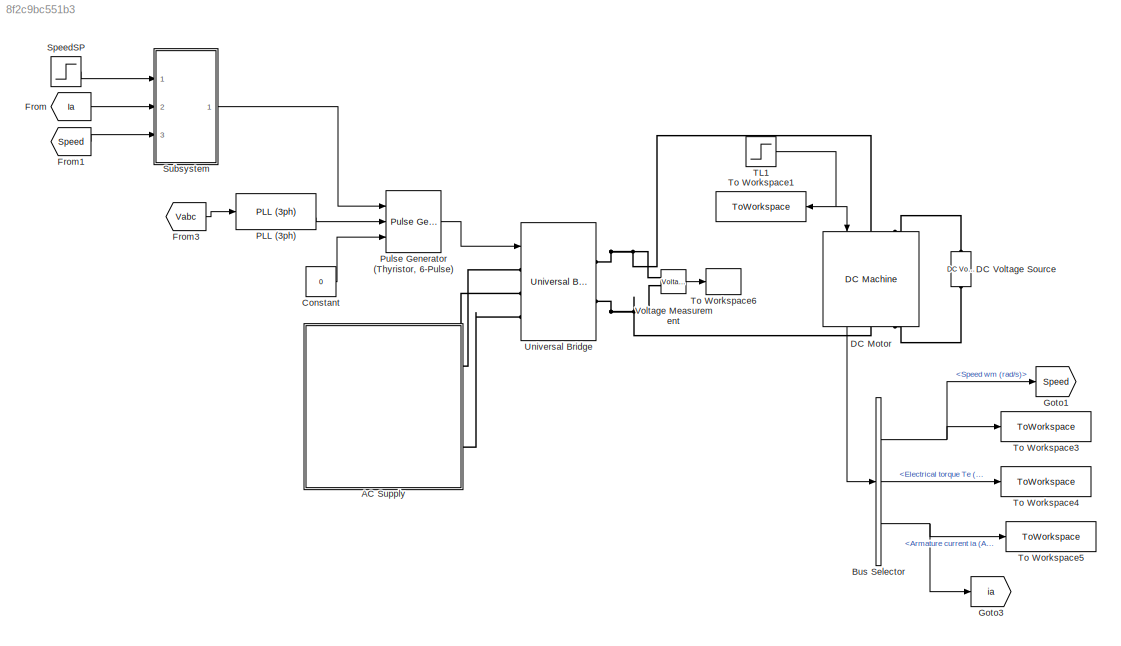
MODEL slx_8f2c9bc551b3
KIND model
CONFIG AbsTol = auto
CONFIG EnableMultiTasking = off
CONFIG FixedStep = auto
CONFIG InitFcn = UaN = 400; IaN = 62; PN = 22e3; \nLa = 5.2e-3; Ra = 0.32; \nTN = 67.8; nN = 3100; J = 0.05; \nUfN = 310; IfN = 1.8; \neta = 0.873; \n% Tinh toan tham so chua biet \nKE = (UaN - Ra*IaN)*9.55/nN ;\nKT = KE ;\nLaf = KE/IfN ;\nRf = UfN/IfN ;\nLf = Laf ;\nfL=200;\n\nzeta=1/sqrt(2); \nTfv=0.001; \nTsp=0.05; \n%--------------------------------------------- \nTd=1/(fL) ;\nTfi=1/(5*fL) ;\nTe=Td+Tfi ;\nTa=La/Ra ;\nwn=1/(2*Te*ze...<+166ch>
CONFIG MaxStep = auto
CONFIG MinStep = auto
CONFIG RelTol = 1e-3
CONFIG SampleTimeConstraint = Unconstrained
CONFIG Solver = VariableStepAuto
CONFIG SolverName = VariableStepAuto
CONFIG StartTime = 0.0
CONFIG StopTime = 3.0
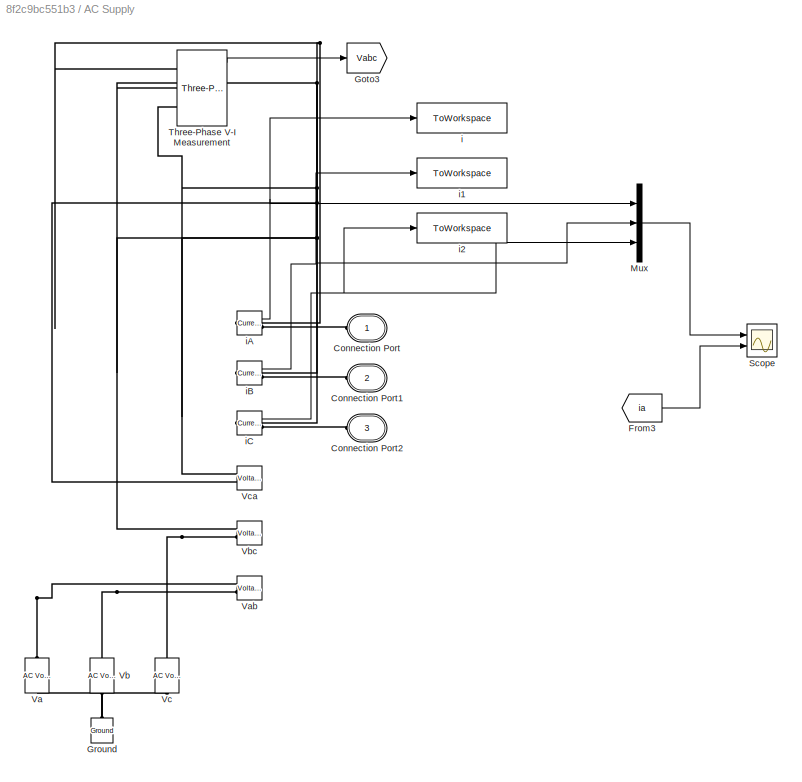
BLOCK [SubSystem] AC Supply
  Ports = [0, 0, 0, 0, 0, 3]
  RequestExecContextInheritance = off
  ShowPortLabels = FromPortBlockName
BLOCK [PMIOPort] AC Supply/Connection Port
  Side = Left
  Tag = PMCPort
BLOCK [PMIOPort] AC Supply/Connection Port1
  Port = 2
  Side = Left
  Tag = PMCPort
BLOCK [PMIOPort] AC Supply/Connection Port2
  Port = 3
  Side = Left
  Tag = PMCPort
BLOCK [From] AC Supply/From3
  GotoTag = ia
  TagVisibility = global
BLOCK [Goto] AC Supply/Goto3
  GotoTag = Vabc
  TagVisibility = global
BLOCK [Reference] AC Supply/Ground  REF=powerlib/Elements/Ground
  Ports = [0, 0, 0, 0, 0, 1]
  SourceBlock = powerlib/Elements/Ground
  SourceProductBaseCode = PS
  SourceType = Ground
BLOCK [Mux] AC Supply/Mux
  DisplayOption = bar
  Inputs = 3
  Ports = [3, 1]
BLOCK [Scope] AC Supply/Scope
  Floating = off
  NumInputPorts = 2
  Ports = [2]
  ScopeSpecificationString = Simulink.scopes.TimeScopeBlockCfg('CurrentConfiguration', extmgr.ConfigurationSet(extmgr.Configuration('Core','General UI',true),extmgr.Configuration('Core','Source UI',true),extmgr.Configuration('Sources','WiredSimulink',true),extmgr.Configuration('Visuals','Time Domain',true,'SerializedDisplays',{struct('MinYLimReal','-0.01855','MaxYLimReal','0.01855','YLabelReal','','MinYLimMag','0.00000','MaxY...<+1431ch>
BLOCK [Reference] AC Supply/Three-Phase V-I Measurement  REF=powerlib/Measurements/Three-Phase
V-I Measurement
  Ports = [0, 2, 0, 0, 0, 3, 3]
  SourceBlock = powerlib/Measurements/Three-Phase\nV-I Measurement
  SourceProductBaseCode = PS
  SourceType = Three-Phase VI Measurement
BLOCK [Reference] AC Supply/Va  REF=powerlib/Electrical
Sources/AC Voltage Source
  Ports = [0, 0, 0, 0, 0, 1, 1]
  SourceBlock = powerlib/Electrical\nSources/AC Voltage Source
  SourceProductBaseCode = PS
  SourceType = AC Voltage Source
BLOCK [Reference] AC Supply/Vab  REF=powerlib/Measurements/Voltage Measurement
  Ports = [0, 1, 0, 0, 0, 2]
  SourceBlock = powerlib/Measurements/Voltage Measurement
  SourceProductBaseCode = PS
  SourceType = Voltage Measurement
  UserDataPersistent = on
BLOCK [Reference] AC Supply/Vb  REF=powerlib/Electrical
Sources/AC Voltage Source
  Ports = [0, 0, 0, 0, 0, 1, 1]
  SourceBlock = powerlib/Electrical\nSources/AC Voltage Source
  SourceProductBaseCode = PS
  SourceType = AC Voltage Source
BLOCK [Reference] AC Supply/Vbc  REF=powerlib/Measurements/Voltage Measurement
  Ports = [0, 1, 0, 0, 0, 2]
  SourceBlock = powerlib/Measurements/Voltage Measurement
  SourceProductBaseCode = PS
  SourceType = Voltage Measurement
  UserDataPersistent = on
BLOCK [Reference] AC Supply/Vc  REF=powerlib/Electrical
Sources/AC Voltage Source
  Ports = [0, 0, 0, 0, 0, 1, 1]
  SourceBlock = powerlib/Electrical\nSources/AC Voltage Source
  SourceProductBaseCode = PS
  SourceType = AC Voltage Source
BLOCK [Reference] AC Supply/Vca  REF=powerlib/Measurements/Voltage Measurement
  Ports = [0, 1, 0, 0, 0, 2]
  SourceBlock = powerlib/Measurements/Voltage Measurement
  SourceProductBaseCode = PS
  SourceType = Voltage Measurement
  UserDataPersistent = on
BLOCK [ToWorkspace] AC Supply/i
  FixptAsFi = on
  MaxDataPoints = inf
  Ports = [1]
  SampleTime = -1
  Save2DSignal = 3-D array (concatenate along third dimension)
  SaveFormat = Structure With Time
  VariableName = iA
BLOCK [ToWorkspace] AC Supply/i1
  FixptAsFi = on
  MaxDataPoints = inf
  Ports = [1]
  SampleTime = -1
  Save2DSignal = 3-D array (concatenate along third dimension)
  SaveFormat = Structure With Time
  VariableName = iB
BLOCK [ToWorkspace] AC Supply/i2
  FixptAsFi = on
  MaxDataPoints = inf
  Ports = [1]
  SampleTime = -1
  Save2DSignal = 3-D array (concatenate along third dimension)
  SaveFormat = Structure With Time
  VariableName = iC
BLOCK [Reference] AC Supply/iA  REF=powerlib/Measurements/Current Measurement
  Ports = [0, 1, 0, 0, 0, 1, 1]
  SourceBlock = powerlib/Measurements/Current Measurement
  SourceProductBaseCode = PS
  SourceType = Current Measurement
  UserDataPersistent = on
BLOCK [Reference] AC Supply/iB  REF=powerlib/Measurements/Current Measurement
  Ports = [0, 1, 0, 0, 0, 1, 1]
  SourceBlock = powerlib/Measurements/Current Measurement
  SourceProductBaseCode = PS
  SourceType = Current Measurement
  UserDataPersistent = on
BLOCK [Reference] AC Supply/iC  REF=powerlib/Measurements/Current Measurement
  Ports = [0, 1, 0, 0, 0, 1, 1]
  SourceBlock = powerlib/Measurements/Current Measurement
  SourceProductBaseCode = PS
  SourceType = Current Measurement
  UserDataPersistent = on
BLOCK [BusSelector] Bus Selector
  OutputAsBus = off
  OutputSignals = Speed wm (rad/s),Electrical torque Te (n m),Armature current ia (A)
  Ports = [1, 3]
BLOCK [Constant] Constant
  Value = 0
BLOCK [Reference] DC Motor  REF=powerlib/Machines/DC Machine
  Ports = [1, 1, 0, 0, 0, 2, 2]
  SourceBlock = powerlib/Machines/DC Machine
  SourceProductBaseCode = PS
  SourceType = DC machine
BLOCK [Reference] DC Voltage Source  REF=powerlib/Electrical
Sources/DC Voltage Source
  Ports = [0, 0, 0, 0, 0, 1, 1]
  SourceBlock = powerlib/Electrical\nSources/DC Voltage Source
  SourceProductBaseCode = PS
  SourceType = DC Voltage Source
BLOCK [From] From
  GotoTag = Ia
BLOCK [From] From1
  GotoTag = Speed
  TagVisibility = global
BLOCK [From] From3
  GotoTag = Vabc
  TagVisibility = global
BLOCK [Goto] Goto1
  GotoTag = Speed
  TagVisibility = global
BLOCK [Goto] Goto3
  GotoTag = ia
  TagVisibility = global
BLOCK [Reference] PLL (3ph)  REF=powerlib_meascontrol/PLL/PLL
(3ph)
  Ports = [1, 2]
  SourceBlock = powerlib_meascontrol/PLL/PLL\n(3ph)
  SourceProductBaseCode = PS
  SourceType = PLL (3ph)
BLOCK [Reference] Pulse Generator (Thyristor, 6-Pulse)  REF=powerlib_meascontrol/Pulse & Signal
Generators/Pulse Generator
(Thyristor, 12-Pulse)
  Ports = [3, 1]
  SourceBlock = powerlib_meascontrol/Pulse & Signal\nGenerators/Pulse Generator\n(Thyristor, 12-Pulse)
  SourceProductBaseCode = PS
  SourceType = Pulse Generator (Thyristor)
BLOCK [Step] SpeedSP
  SampleTime = 0
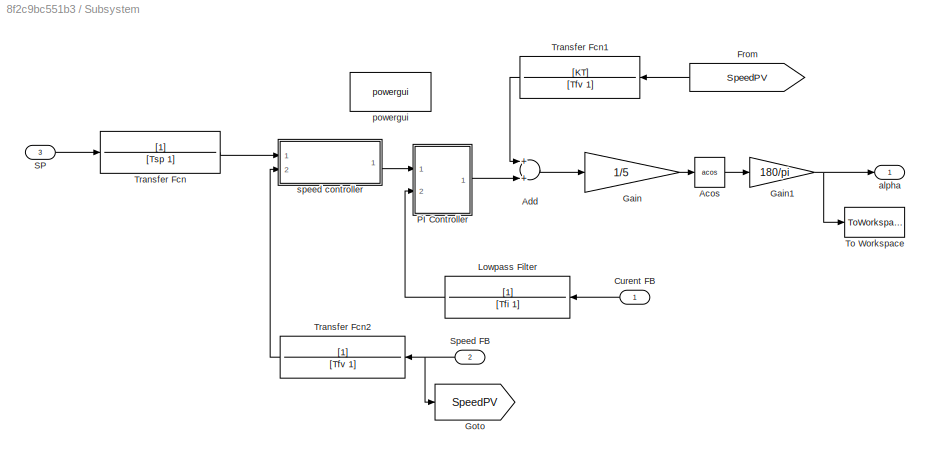
BLOCK [SubSystem] Subsystem
  Ports = [3, 1]
  RequestExecContextInheritance = off
BLOCK [Trigonometry] Subsystem/Acos
  Operator = acos
  Ports = [1, 1]
BLOCK [Sum] Subsystem/Add
  InputSameDT = off
  OutDataTypeStr = Inherit: Inherit via internal rule
  Ports = [2, 1]
  SaturateOnIntegerOverflow = off
BLOCK [Inport] Subsystem/Curent FB
  IconDisplay = Port number
BLOCK [From] Subsystem/From
  GotoTag = SpeedPV
BLOCK [Gain] Subsystem/Gain
  Gain = 1/5
  OutDataTypeStr = Inherit: Inherit via internal rule
  ParamDataTypeStr = Inherit: Inherit via internal rule
  SaturateOnIntegerOverflow = off
BLOCK [Gain] Subsystem/Gain1
  Gain = 180/pi
  OutDataTypeStr = Inherit: Inherit via internal rule
  ParamDataTypeStr = Inherit: Inherit via internal rule
  SaturateOnIntegerOverflow = off
BLOCK [Goto] Subsystem/Goto
  GotoTag = SpeedPV
BLOCK [TransferFcn] Subsystem/Lowpass Filter
  Denominator = [Tfi 1]
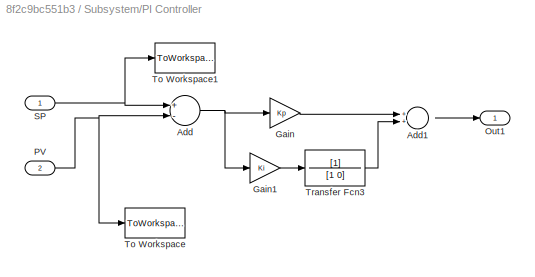
BLOCK [SubSystem] Subsystem/PI Controller
  Ports = [2, 1]
  RequestExecContextInheritance = off
BLOCK [Sum] Subsystem/PI Controller/Add
  InputSameDT = off
  Inputs = +-
  OutDataTypeStr = Inherit: Inherit via internal rule
  Ports = [2, 1]
  SaturateOnIntegerOverflow = off
BLOCK [Sum] Subsystem/PI Controller/Add1
  InputSameDT = off
  OutDataTypeStr = Inherit: Inherit via internal rule
  Ports = [2, 1]
  SaturateOnIntegerOverflow = off
BLOCK [Gain] Subsystem/PI Controller/Gain
  Gain = Kp
  OutDataTypeStr = Inherit: Inherit via internal rule
  ParamDataTypeStr = Inherit: Inherit via internal rule
  SaturateOnIntegerOverflow = off
BLOCK [Gain] Subsystem/PI Controller/Gain1
  Gain = Ki
  OutDataTypeStr = Inherit: Inherit via internal rule
  ParamDataTypeStr = Inherit: Inherit via internal rule
  SaturateOnIntegerOverflow = off
BLOCK [Outport] Subsystem/PI Controller/Out1
  IconDisplay = Port number
BLOCK [Inport] Subsystem/PI Controller/PV
  IconDisplay = Port number
  Port = 2
BLOCK [Inport] Subsystem/PI Controller/SP 
  IconDisplay = Port number
BLOCK [ToWorkspace] Subsystem/PI Controller/To Workspace
  MaxDataPoints = inf
  Ports = [1]
  SampleTime = 1e-6
  SaveFormat = Structure With Time
  VariableName = I_PV
BLOCK [ToWorkspace] Subsystem/PI Controller/To Workspace1
  MaxDataPoints = inf
  Ports = [1]
  SampleTime = 1e-6
  SaveFormat = Structure With Time
  VariableName = I_SP
BLOCK [TransferFcn] Subsystem/PI Controller/Transfer Fcn3
  Denominator = [1 0]
BLOCK [Inport] Subsystem/SP
  IconDisplay = Port number
  Port = 3
BLOCK [Inport] Subsystem/Speed FB
  IconDisplay = Port number
  Port = 2
BLOCK [ToWorkspace] Subsystem/To Workspace
  FixptAsFi = on
  MaxDataPoints = inf
  Ports = [1]
  SampleTime = 1e-6
  Save2DSignal = 3-D array (concatenate along third dimension)
  SaveFormat = Structure With Time
  VariableName = alpha2
BLOCK [TransferFcn] Subsystem/Transfer Fcn
  Denominator = [Tsp 1]
BLOCK [TransferFcn] Subsystem/Transfer Fcn1
  Denominator = [Tfv 1]
  Numerator = [KT]
BLOCK [TransferFcn] Subsystem/Transfer Fcn2
  Denominator = [Tfv 1]
BLOCK [Outport] Subsystem/alpha 
  IconDisplay = Port number
BLOCK [Reference] Subsystem/powergui  REF=powerlib/powergui
  Ports = []
  Priority = 1
  SourceBlock = powerlib/powergui
  SourceProductBaseCode = PS
  SourceProductName = Simscape Power Systems
  SourceType = PSB option menu block
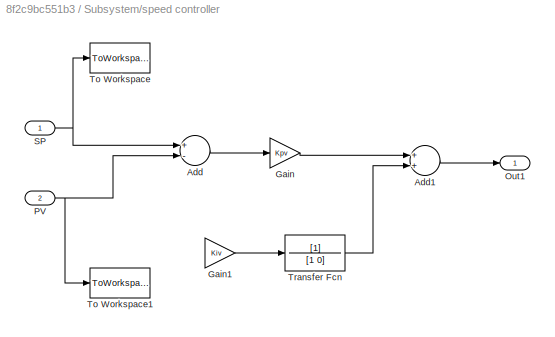
BLOCK [SubSystem] Subsystem/speed controller 
  Ports = [2, 1]
  RequestExecContextInheritance = off
BLOCK [Sum] Subsystem/speed controller /Add
  InputSameDT = off
  Inputs = +-
  OutDataTypeStr = Inherit: Inherit via internal rule
  Ports = [2, 1]
  SaturateOnIntegerOverflow = off
BLOCK [Sum] Subsystem/speed controller /Add1
  InputSameDT = off
  OutDataTypeStr = Inherit: Inherit via internal rule
  Ports = [2, 1]
  SaturateOnIntegerOverflow = off
BLOCK [Gain] Subsystem/speed controller /Gain
  Gain = Kpv
  OutDataTypeStr = Inherit: Inherit via internal rule
  ParamDataTypeStr = Inherit: Inherit via internal rule
  SaturateOnIntegerOverflow = off
BLOCK [Gain] Subsystem/speed controller /Gain1
  Gain = Kiv
  OutDataTypeStr = Inherit: Inherit via internal rule
  ParamDataTypeStr = Inherit: Inherit via internal rule
  SaturateOnIntegerOverflow = off
BLOCK [Outport] Subsystem/speed controller /Out1
  IconDisplay = Port number
BLOCK [Inport] Subsystem/speed controller /PV 
  IconDisplay = Port number
  Port = 2
BLOCK [Inport] Subsystem/speed controller /SP 
  IconDisplay = Port number
BLOCK [ToWorkspace] Subsystem/speed controller /To Workspace
  FixptAsFi = on
  MaxDataPoints = inf
  Ports = [1]
  SampleTime = -1
  Save2DSignal = 3-D array (concatenate along third dimension)
  SaveFormat = Timeseries
  VariableName = V_SP1
BLOCK [ToWorkspace] Subsystem/speed controller /To Workspace1
  FixptAsFi = on
  MaxDataPoints = inf
  Ports = [1]
  SampleTime = -1
  Save2DSignal = 3-D array (concatenate along third dimension)
  SaveFormat = Timeseries
  VariableName = V_PV1
BLOCK [TransferFcn] Subsystem/speed controller /Transfer Fcn
  Denominator = [1 0]
BLOCK [Step] TL1
  After = TN
  SampleTime = 0
  Time = 0
BLOCK [ToWorkspace] To Workspace1
  FixptAsFi = on
  MaxDataPoints = inf
  Ports = [1]
  SampleTime = 1e-6
  Save2DSignal = 3-D array (concatenate along third dimension)
  SaveFormat = Structure With Time
  VariableName = TL
BLOCK [ToWorkspace] To Workspace3
  FixptAsFi = on
  MaxDataPoints = inf
  Ports = [1]
  SampleTime = -1
  Save2DSignal = 3-D array (concatenate along third dimension)
  SaveFormat = Structure With Time
  VariableName = Speed
BLOCK [ToWorkspace] To Workspace4
  FixptAsFi = on
  MaxDataPoints = inf
  Ports = [1]
  SampleTime = -1
  Save2DSignal = 3-D array (concatenate along third dimension)
  SaveFormat = Structure With Time
  VariableName = Te
BLOCK [ToWorkspace] To Workspace5
  FixptAsFi = on
  MaxDataPoints = inf
  Ports = [1]
  SampleTime = -1
  Save2DSignal = 3-D array (concatenate along third dimension)
  SaveFormat = Structure With Time
  VariableName = ia
BLOCK [ToWorkspace] To Workspace6
  FixptAsFi = on
  MaxDataPoints = inf
  Ports = [1]
  SampleTime = -1
  Save2DSignal = 3-D array (concatenate along third dimension)
  SaveFormat = Structure With Time
  VariableName = Va
BLOCK [Reference] Universal Bridge  REF=powerlib/Power
Electronics/Universal Bridge
  Ports = [1, 0, 0, 0, 0, 3, 2]
  SourceBlock = powerlib/Power\nElectronics/Universal Bridge
  SourceProductBaseCode = PS
  SourceType = Universal Bridge
BLOCK [Reference] Voltage Measurement  REF=powerlib/Measurements/Voltage Measurement
  Ports = [0, 1, 0, 0, 0, 2]
  SourceBlock = powerlib/Measurements/Voltage Measurement
  SourceProductBaseCode = PS
  SourceType = Voltage Measurement
  UserDataPersistent = on
LINE AC Supply/From3:1 -> AC Supply/Scope:2
LINE AC Supply/Mux:1 -> AC Supply/Scope:1
LINE AC Supply/Three-Phase V-I Measurement:1 -> AC Supply/Goto3:1
NET AC Supply/iA:1 -> AC Supply/Mux:1, AC Supply/i:1
NET AC Supply/iB:1 -> AC Supply/Mux:2, AC Supply/i1:1
NET AC Supply/iC:1 -> AC Supply/Mux:3, AC Supply/i2:1
NET Bus Selector:1 -> Goto1:1, To Workspace3:1
LINE Bus Selector:2 -> To Workspace4:1
NET Bus Selector:3 -> Goto3:1, To Workspace5:1
LINE Constant:1 -> Pulse Generator (Thyristor, 6-Pulse):3
LINE DC Motor:1 -> Bus Selector:1
LINE From1:1 -> Subsystem:3
LINE From3:1 -> PLL (3ph):1
LINE From:1 -> Subsystem:2
LINE PLL (3ph):2 -> Pulse Generator (Thyristor, 6-Pulse):2
LINE Pulse Generator (Thyristor, 6-Pulse):1 -> Universal Bridge:1
LINE SpeedSP:1 -> Subsystem:1
LINE Subsystem/Acos:1 -> Subsystem/Gain1:1
LINE Subsystem/Add:1 -> Subsystem/Gain:1
LINE Subsystem/Curent FB:1 -> Subsystem/Lowpass Filter:1
LINE Subsystem/From:1 -> Subsystem/Transfer Fcn1:1
NET Subsystem/Gain1:1 -> Subsystem/To Workspace:1, Subsystem/alpha :1
LINE Subsystem/Gain:1 -> Subsystem/Acos:1
LINE Subsystem/Lowpass Filter:1 -> Subsystem/PI Controller:2
LINE Subsystem/PI Controller/Add1:1 -> Subsystem/PI Controller/Out1:1
NET Subsystem/PI Controller/Add:1 -> Subsystem/PI Controller/Gain1:1, Subsystem/PI Controller/Gain:1
LINE Subsystem/PI Controller/Gain1:1 -> Subsystem/PI Controller/Transfer Fcn3:1
LINE Subsystem/PI Controller/Gain:1 -> Subsystem/PI Controller/Add1:1
NET Subsystem/PI Controller/PV:1 -> Subsystem/PI Controller/Add:2, Subsystem/PI Controller/To Workspace:1
NET Subsystem/PI Controller/SP :1 -> Subsystem/PI Controller/Add:1, Subsystem/PI Controller/To Workspace1:1
LINE Subsystem/PI Controller/Transfer Fcn3:1 -> Subsystem/PI Controller/Add1:2
LINE Subsystem/PI Controller:1 -> Subsystem/Add:2
LINE Subsystem/SP:1 -> Subsystem/Transfer Fcn:1
NET Subsystem/Speed FB:1 -> Subsystem/Goto:1, Subsystem/Transfer Fcn2:1
LINE Subsystem/Transfer Fcn1:1 -> Subsystem/Add:1
LINE Subsystem/Transfer Fcn2:1 -> Subsystem/speed controller :2
LINE Subsystem/Transfer Fcn:1 -> Subsystem/speed controller :1
LINE Subsystem/speed controller /Add1:1 -> Subsystem/speed controller /Out1:1
LINE Subsystem/speed controller /Add:1 -> Subsystem/speed controller /Gain:1
LINE Subsystem/speed controller /Gain1:1 -> Subsystem/speed controller /Transfer Fcn:1
LINE Subsystem/speed controller /Gain:1 -> Subsystem/speed controller /Add1:1
NET Subsystem/speed controller /PV :1 -> Subsystem/speed controller /Add:2, Subsystem/speed controller /To Workspace1:1
NET Subsystem/speed controller /SP :1 -> Subsystem/speed controller /Add:1, Subsystem/speed controller /To Workspace:1
LINE Subsystem/speed controller /Transfer Fcn:1 -> Subsystem/speed controller /Add1:2
LINE Subsystem/speed controller :1 -> Subsystem/PI Controller:1
LINE Subsystem:1 -> Pulse Generator (Thyristor, 6-Pulse):1
NET TL1:1 -> DC Motor:1, To Workspace1:1
LINE Voltage Measurement:1 -> To Workspace6:1
PLINE AC Supply/Connection Port1:RConn1 -- AC Supply/iB:RConn1
PLINE AC Supply/Connection Port2:RConn1 -- AC Supply/iC:RConn1
PLINE AC Supply/Connection Port:RConn1 -- AC Supply/iA:RConn1
PNET net1: AC Supply/Ground:LConn1 -- AC Supply/Va:LConn1 -- AC Supply/Vb:LConn1 -- AC Supply/Vc:LConn1
PNET net2: AC Supply/Three-Phase V-I Measurement:LConn1 -- AC Supply/Va:RConn1 -- AC Supply/Vab:LConn1 -- AC Supply/Vca:LConn2 -- AC Supply/iA:LConn1
PNET net3: AC Supply/Three-Phase V-I Measurement:LConn2 -- AC Supply/Vab:LConn2 -- AC Supply/Vb:RConn1 -- AC Supply/Vbc:LConn1 -- AC Supply/iB:LConn1
PNET net4: AC Supply/Three-Phase V-I Measurement:LConn3 -- AC Supply/Vbc:LConn2 -- AC Supply/Vc:RConn1 -- AC Supply/Vca:LConn1 -- AC Supply/iC:LConn1
PLINE AC Supply:LConn1 -- Universal Bridge:LConn1
PLINE AC Supply:LConn2 -- Universal Bridge:LConn2
PLINE AC Supply:LConn3 -- Universal Bridge:LConn3
PNET net5: DC Motor:LConn1 -- Universal Bridge:RConn1 -- Voltage Measurement:LConn1
PLINE DC Motor:LConn2 -- DC Voltage Source:RConn1
PNET net6: DC Motor:RConn1 -- Universal Bridge:RConn2 -- Voltage Measurement:LConn2
PLINE DC Motor:RConn2 -- DC Voltage Source:LConn1
note: NET lines group one-source signal fan-out (src -> all destinations, sorted); 1:1 wires keep LINE; PNET lines group multi-terminal physical nets as a canonical sorted terminal list (undirected conserving connections); 2-terminal nets keep the pairwise PLINE form
